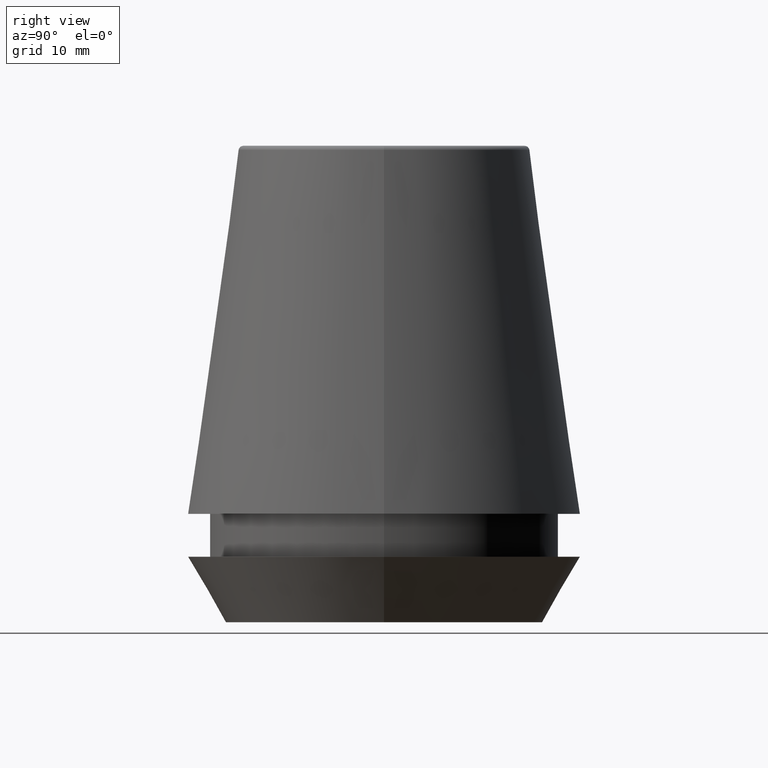
[diagram: clean part render]
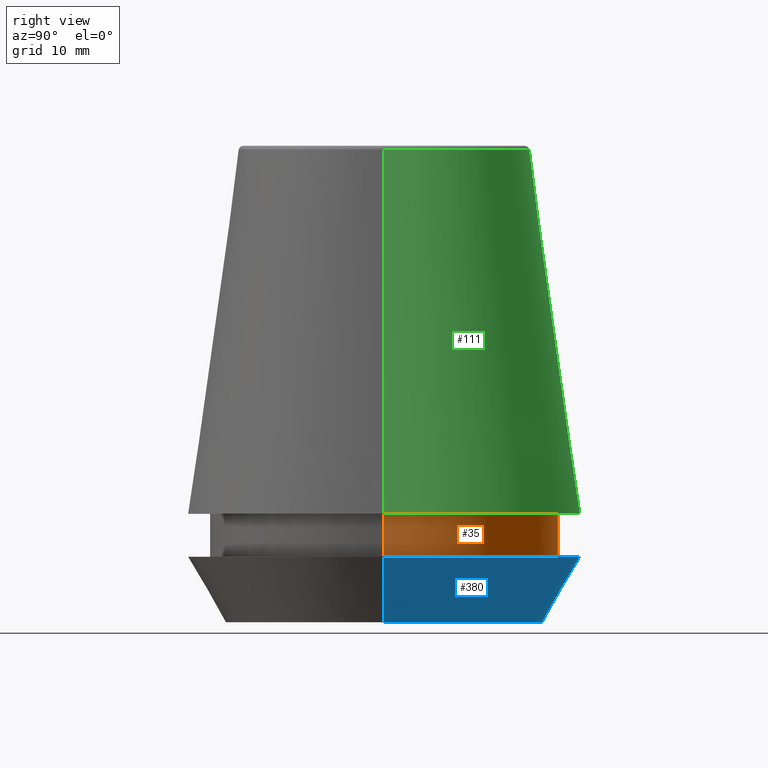
[diagram: same view with three faces highlighted in distinct colors, each labeled with its STEP entity id]
A machine part, right view with three faces highlighted in distinct colors.
Their STEP definitions:

[orange] entity #35 — the highlighted cylindrical surface (partial cylindrical patch) has radius 14.6 mm, axis along (-0, -0, 1).
#5 = DIRECTION ( 'NONE',  ( -0.0000000000000000000, -0.0000000000000000000, 1.000000000000000000 ) ) ;
#7 = VERTEX_POINT ( 'NONE', #141 ) ;
#9 = DIRECTION ( 'NONE',  ( -0.0000000000000000000, -0.0000000000000000000, 1.000000000000000000 ) ) ;
#20 = VECTOR ( 'NONE', #250, 1000.000000000000000 ) ;
#34 = CARTESIAN_POINT ( 'NONE',  ( -14.60000000000000000, 1.787984326755135800E-015, 5.500000000000005300 ) ) ;
#35 = ADVANCED_FACE ( 'NONE', ( #61 ), #338, .T. ) ;
#36 = CARTESIAN_POINT ( 'NONE',  ( -14.60000000000000000, 1.787984326755135800E-015, 9.099999999999997900 ) ) ;
#48 = EDGE_CURVE ( 'NONE', #7, #108, #387, .T. ) ;
#59 = VERTEX_POINT ( 'NONE', #342 ) ;
#60 = EDGE_CURVE ( 'NONE', #7, #59, #263, .T. ) ;
#61 = FACE_OUTER_BOUND ( 'NONE', #129, .T. ) ;
#68 = EDGE_CURVE ( 'NONE', #59, #363, #370, .T. ) ;
#72 = CARTESIAN_POINT ( 'NONE',  ( 0.0000000000000000000, 0.0000000000000000000, 9.099999999999997900 ) ) ;
#90 = EDGE_CURVE ( 'NONE', #108, #363, #117, .T. ) ;
#100 = DIRECTION ( 'NONE',  ( -0.0000000000000000000, -0.0000000000000000000, 1.000000000000000000 ) ) ;
#103 = VECTOR ( 'NONE', #5, 1000.000000000000000 ) ;
#105 = CARTESIAN_POINT ( 'NONE',  ( 0.0000000000000000000, 0.0000000000000000000, 101.8074564848000400 ) ) ;
#108 = VERTEX_POINT ( 'NONE', #34 ) ;
#117 = LINE ( 'NONE', #219, #20 ) ;
#129 = EDGE_LOOP ( 'NONE', ( #280, #324, #147, #174 ) ) ;
#131 = CARTESIAN_POINT ( 'NONE',  ( 14.60000000000000000, 0.0000000000000000000, 101.8074564848000400 ) ) ;
#133 = CARTESIAN_POINT ( 'NONE',  ( 0.0000000000000000000, 0.0000000000000000000, 5.500000000000005300 ) ) ;
#141 = CARTESIAN_POINT ( 'NONE',  ( 14.60000000000000000, 0.0000000000000000000, 5.500000000000005300 ) ) ;
#147 = ORIENTED_EDGE ( 'NONE', *, *, #68, .F. ) ;
#158 = DIRECTION ( 'NONE',  ( 1.000000000000000000, 0.0000000000000000000, 0.0000000000000000000 ) ) ;
#174 = ORIENTED_EDGE ( 'NONE', *, *, #60, .F. ) ;
#189 = DIRECTION ( 'NONE',  ( 1.000000000000000000, 0.0000000000000000000, 0.0000000000000000000 ) ) ;
#201 = AXIS2_PLACEMENT_3D ( 'NONE', #72, #100, #158 ) ;
#219 = CARTESIAN_POINT ( 'NONE',  ( -14.60000000000000000, 1.787984326755135800E-015, 101.8074564848000400 ) ) ;
#222 = AXIS2_PLACEMENT_3D ( 'NONE', #105, #316, #189 ) ;
#235 = AXIS2_PLACEMENT_3D ( 'NONE', #133, #9, #253 ) ;
#250 = DIRECTION ( 'NONE',  ( -0.0000000000000000000, -0.0000000000000000000, 1.000000000000000000 ) ) ;
#253 = DIRECTION ( 'NONE',  ( 1.000000000000000000, 0.0000000000000000000, 0.0000000000000000000 ) ) ;
#263 = LINE ( 'NONE', #131, #103 ) ;
#280 = ORIENTED_EDGE ( 'NONE', *, *, #48, .T. ) ;
#316 = DIRECTION ( 'NONE',  ( -0.0000000000000000000, -0.0000000000000000000, 1.000000000000000000 ) ) ;
#324 = ORIENTED_EDGE ( 'NONE', *, *, #90, .T. ) ;
#338 = CYLINDRICAL_SURFACE ( 'NONE', #222, 14.60000000000000000 ) ;
#342 = CARTESIAN_POINT ( 'NONE',  ( 14.60000000000000000, 0.0000000000000000000, 9.099999999999997900 ) ) ;
#363 = VERTEX_POINT ( 'NONE', #36 ) ;
#370 = CIRCLE ( 'NONE', #201, 14.60000000000000000 ) ;
#387 = CIRCLE ( 'NONE', #235, 14.60000000000000000 ) ;

[blue] entity #380 — the highlighted conical surface has half-angle 30 deg.
#4 = EDGE_CURVE ( 'NONE', #188, #385, #56, .T. ) ;
#10 = EDGE_CURVE ( 'NONE', #193, #98, #40, .T. ) ;
#23 = ORIENTED_EDGE ( 'NONE', *, *, #32, .F. ) ;
#32 = EDGE_CURVE ( 'NONE', #193, #188, #241, .T. ) ;
#38 = DIRECTION ( 'NONE',  ( -0.4999999999999947300, 6.123233995736700700E-017, 0.8660254037844418200 ) ) ;
#40 = CIRCLE ( 'NONE', #228, 13.32457351945710200 ) ;
#44 = DIRECTION ( 'NONE',  ( 0.4999999999999947300, 0.0000000000000000000, 0.8660254037844418200 ) ) ;
#56 = CIRCLE ( 'NONE', #283, 16.50000000000000000 ) ;
#57 = CARTESIAN_POINT ( 'NONE',  ( 13.32457351945710200, 0.0000000000000000000, 0.0000000000000000000 ) ) ;
#67 = CARTESIAN_POINT ( 'NONE',  ( -16.50000000000000000, 2.020667218593133100E-015, 5.500000000000005300 ) ) ;
#74 = VECTOR ( 'NONE', #44, 999.9999999999998900 ) ;
#83 = DIRECTION ( 'NONE',  ( -0.0000000000000000000, -0.0000000000000000000, 1.000000000000000000 ) ) ;
#86 = DIRECTION ( 'NONE',  ( 1.000000000000000000, 0.0000000000000000000, 0.0000000000000000000 ) ) ;
#98 = VERTEX_POINT ( 'NONE', #204 ) ;
#106 = CARTESIAN_POINT ( 'NONE',  ( 0.0000000000000000000, 0.0000000000000000000, 0.0000000000000000000 ) ) ;
#112 = AXIS2_PLACEMENT_3D ( 'NONE', #247, #273, #309 ) ;
#118 = EDGE_LOOP ( 'NONE', ( #168, #211, #292, #23 ) ) ;
#168 = ORIENTED_EDGE ( 'NONE', *, *, #10, .T. ) ;
#183 = CARTESIAN_POINT ( 'NONE',  ( -13.32457351945710200, 1.631789631060672300E-015, 0.0000000000000000000 ) ) ;
#188 = VERTEX_POINT ( 'NONE', #330 ) ;
#193 = VERTEX_POINT ( 'NONE', #57 ) ;
#195 = DIRECTION ( 'NONE',  ( 1.000000000000000000, 0.0000000000000000000, 0.0000000000000000000 ) ) ;
#204 = CARTESIAN_POINT ( 'NONE',  ( -13.32457351945710200, 1.826228424826902600E-015, 0.0000000000000000000 ) ) ;
#211 = ORIENTED_EDGE ( 'NONE', *, *, #349, .T. ) ;
#228 = AXIS2_PLACEMENT_3D ( 'NONE', #106, #318, #195 ) ;
#241 = LINE ( 'NONE', #347, #74 ) ;
#247 = CARTESIAN_POINT ( 'NONE',  ( 0.0000000000000000000, 0.0000000000000000000, 0.0000000000000000000 ) ) ;
#254 = CONICAL_SURFACE ( 'NONE', #112, 13.32457351945710200, 0.5235987755982927100 ) ;
#273 = DIRECTION ( 'NONE',  ( -0.0000000000000000000, -0.0000000000000000000, 1.000000000000000000 ) ) ;
#282 = FACE_OUTER_BOUND ( 'NONE', #118, .T. ) ;
#283 = AXIS2_PLACEMENT_3D ( 'NONE', #322, #83, #86 ) ;
#292 = ORIENTED_EDGE ( 'NONE', *, *, #4, .F. ) ;
#309 = DIRECTION ( 'NONE',  ( 1.000000000000000000, 0.0000000000000000000, 0.0000000000000000000 ) ) ;
#318 = DIRECTION ( 'NONE',  ( -0.0000000000000000000, -0.0000000000000000000, 1.000000000000000000 ) ) ;
#322 = CARTESIAN_POINT ( 'NONE',  ( 0.0000000000000000000, 0.0000000000000000000, 5.500000000000005300 ) ) ;
#330 = CARTESIAN_POINT ( 'NONE',  ( 16.50000000000000000, 0.0000000000000000000, 5.500000000000005300 ) ) ;
#347 = CARTESIAN_POINT ( 'NONE',  ( 13.32457351945710200, 0.0000000000000000000, 0.0000000000000000000 ) ) ;
#349 = EDGE_CURVE ( 'NONE', #98, #385, #350, .T. ) ;
#350 = LINE ( 'NONE', #183, #351 ) ;
#351 = VECTOR ( 'NONE', #38, 999.9999999999998900 ) ;
#380 = ADVANCED_FACE ( 'NONE', ( #282 ), #254, .T. ) ;
#385 = VERTEX_POINT ( 'NONE', #67 ) ;

[green] entity #111 — the highlighted conical surface has half-angle 8 deg.
#41 = DIRECTION ( 'NONE',  ( -0.1391731009600586900, 0.0000000000000000000, -0.9902680687415712500 ) ) ;
#46 = ORIENTED_EDGE ( 'NONE', *, *, #97, .F. ) ;
#51 = EDGE_CURVE ( 'NONE', #203, #303, #172, .T. ) ;
#55 = EDGE_CURVE ( 'NONE', #227, #220, #182, .T. ) ;
#73 = DIRECTION ( 'NONE',  ( -0.0000000000000000000, -0.0000000000000000000, 1.000000000000000000 ) ) ;
#96 = FACE_OUTER_BOUND ( 'NONE', #239, .T. ) ;
#97 = EDGE_CURVE ( 'NONE', #303, #220, #167, .T. ) ;
#111 = ADVANCED_FACE ( 'NONE', ( #96 ), #214, .T. ) ;
#115 = DIRECTION ( 'NONE',  ( 0.1391731009600586900, 1.704378926181473100E-017, -0.9902680687415712500 ) ) ;
#120 = DIRECTION ( 'NONE',  ( 0.0000000000000000000, 0.0000000000000000000, -1.000000000000000000 ) ) ;
#145 = VECTOR ( 'NONE', #115, 1000.000000000000000 ) ;
#148 = CARTESIAN_POINT ( 'NONE',  ( 16.50032537154048700, 2.020707065114692300E-015, 9.099999999999997900 ) ) ;
#156 = ORIENTED_EDGE ( 'NONE', *, *, #258, .T. ) ;
#167 = LINE ( 'NONE', #368, #297 ) ;
#172 = CIRCLE ( 'NONE', #266, 12.20600611160694300 ) ;
#182 = CIRCLE ( 'NONE', #207, 16.50032537154048700 ) ;
#184 = AXIS2_PLACEMENT_3D ( 'NONE', #310, #120, #336 ) ;
#187 = DIRECTION ( 'NONE',  ( -0.0000000000000000000, -0.0000000000000000000, 1.000000000000000000 ) ) ;
#203 = VERTEX_POINT ( 'NONE', #270 ) ;
#205 = CARTESIAN_POINT ( 'NONE',  ( 16.50032537154048700, 2.020707065114692300E-015, 9.099999999999997900 ) ) ;
#207 = AXIS2_PLACEMENT_3D ( 'NONE', #221, #73, #277 ) ;
#214 = CONICAL_SURFACE ( 'NONE', #184, 16.50032537154048700, 0.1396263401595395900 ) ;
#220 = VERTEX_POINT ( 'NONE', #237 ) ;
#221 = CARTESIAN_POINT ( 'NONE',  ( 0.0000000000000000000, 0.0000000000000000000, 9.099999999999997900 ) ) ;
#227 = VERTEX_POINT ( 'NONE', #205 ) ;
#237 = CARTESIAN_POINT ( 'NONE',  ( -16.50032537154048700, 0.0000000000000000000, 9.099999999999997900 ) ) ;
#239 = EDGE_LOOP ( 'NONE', ( #311, #156, #299, #46 ) ) ;
#244 = CARTESIAN_POINT ( 'NONE',  ( -12.20600611160694300, 0.0000000000000000000, 39.65566924038402900 ) ) ;
#258 = EDGE_CURVE ( 'NONE', #203, #227, #259, .T. ) ;
#259 = LINE ( 'NONE', #148, #145 ) ;
#266 = AXIS2_PLACEMENT_3D ( 'NONE', #369, #187, #278 ) ;
#270 = CARTESIAN_POINT ( 'NONE',  ( 12.20600611160694300, 1.757755848304969800E-015, 39.65566924038402900 ) ) ;
#277 = DIRECTION ( 'NONE',  ( 1.000000000000000000, 0.0000000000000000000, 0.0000000000000000000 ) ) ;
#278 = DIRECTION ( 'NONE',  ( 1.000000000000000000, 0.0000000000000000000, 0.0000000000000000000 ) ) ;
#297 = VECTOR ( 'NONE', #41, 1000.000000000000000 ) ;
#299 = ORIENTED_EDGE ( 'NONE', *, *, #55, .T. ) ;
#303 = VERTEX_POINT ( 'NONE', #244 ) ;
#310 = CARTESIAN_POINT ( 'NONE',  ( 0.0000000000000000000, 0.0000000000000000000, 9.099999999999997900 ) ) ;
#311 = ORIENTED_EDGE ( 'NONE', *, *, #51, .F. ) ;
#336 = DIRECTION ( 'NONE',  ( -1.000000000000000000, 0.0000000000000000000, 0.0000000000000000000 ) ) ;
#368 = CARTESIAN_POINT ( 'NONE',  ( -16.50032537154048700, 0.0000000000000000000, 9.099999999999997900 ) ) ;
#369 = CARTESIAN_POINT ( 'NONE',  ( 0.0000000000000000000, 0.0000000000000000000, 39.65566924038402900 ) ) ;